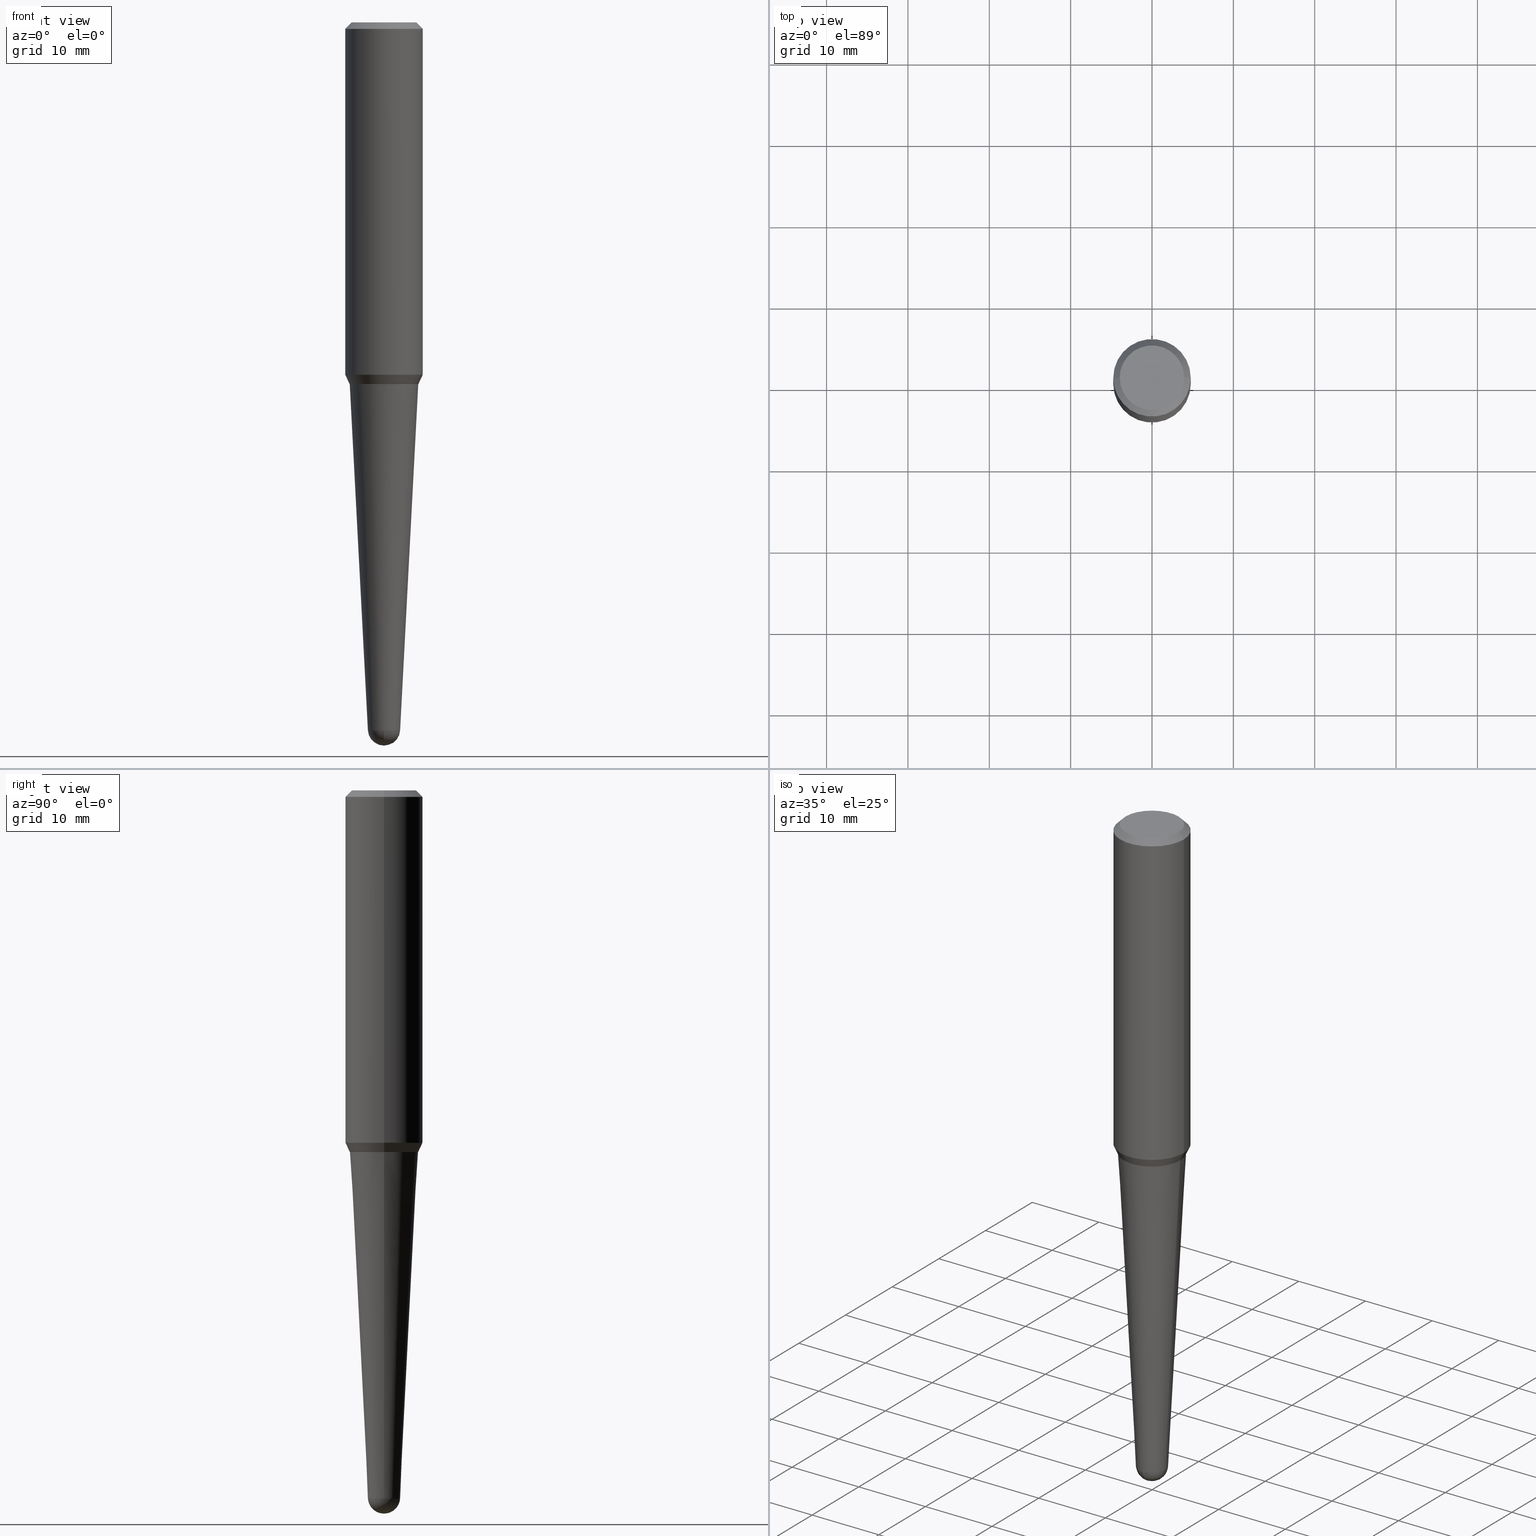
[diagram: canonical four-view strip — front | top / right | iso, engineering-drawing reading convention]
A machine part, canonical four-view strip (front | top / right | iso — engineering-drawing reading convention). The complete STEP part file that produces these views, byte-faithful:
ISO-10303-21;
HEADER;
FILE_DESCRIPTION (( 'STEP AP203' ),
    '1' );
FILE_NAME ('32455.STEP',
    '2024-03-04T15:24:54',
    ( '' ),
    ( '' ),
    'SwSTEP 2.0',
    'SolidWorks 2023',
    '' );
FILE_SCHEMA (( 'CONFIG_CONTROL_DESIGN' ));
ENDSEC;

DATA;
#1 = EDGE_LOOP ( 'NONE', ( #457, #412, #369, #55 ) ) ;
#2 = ADVANCED_FACE ( 'NONE', ( #353 ), #298, .T. ) ;
#3 = DIRECTION ( 'NONE',  ( 6.982962677686265922E-15, 1.000000000000000000, 0.000000000000000000 ) ) ;
#4 = SPHERICAL_SURFACE ( 'NONE', #436, 0.07809999999999991949 ) ;
#5 = AXIS2_PLACEMENT_3D ( 'NONE', #210, #291, #362 ) ;
#6 = DIRECTION ( 'NONE',  ( -2.445468806185136877E-29, 3.491481338843145188E-15, 1.000000000000000000 ) ) ;
#7 = CC_DESIGN_PERSON_AND_ORGANIZATION_ASSIGNMENT ( #352, #30, ( #221 ) ) ;
#8 = CIRCLE ( 'NONE', #377, 0.07799296666433258585 ) ;
#9 = ADVANCED_FACE ( 'NONE', ( #314 ), #246, .T. ) ;
#10 = AXIS2_PLACEMENT_3D ( 'NONE', #118, #262, #418 ) ;
#11 = LINE ( 'NONE', #220, #287 ) ;
#12 = EDGE_CURVE ( 'NONE', #17, #121, #8, .T. ) ;
#13 = ORIENTED_EDGE ( 'NONE', *, *, #74, .T. ) ;
#14 = DIRECTION ( 'NONE',  ( 2.445468806185136597E-29, -3.491481338843145583E-15, -1.000000000000000000 ) ) ;
#15 = AXIS2_PLACEMENT_3D ( 'NONE', #102, #178, #401 ) ;
#16 = CARTESIAN_POINT ( 'NONE',  ( -0.1663277464057546506, -4.925613396161822668E-15, -1.749999999999999556 ) ) ;
#17 = VERTEX_POINT ( 'NONE', #125 ) ;
#18 = DIRECTION ( 'NONE',  ( -2.445468806185136597E-29, 3.491481338843145583E-15, 1.000000000000000000 ) ) ;
#19 = CARTESIAN_POINT ( 'NONE',  ( 7.642090019328561499E-31, -1.091087918388484350E-16, -0.03125000000000003469 ) ) ;
#20 = ORIENTED_EDGE ( 'NONE', *, *, #245, .F. ) ;
#21 = CIRCLE ( 'NONE', #279, 0.07799296666433258585 ) ;
#22 = CARTESIAN_POINT ( 'NONE',  ( 4.169935664663897396E-29, -5.953562981677331975E-15, -1.705168209104609645 ) ) ;
#23 = VECTOR ( 'NONE', #283, 39.37007874015748854 ) ;
#24 = ORIENTED_EDGE ( 'NONE', *, *, #266, .T. ) ;
#25 = CARTESIAN_POINT ( 'NONE',  ( 4.279570410823988484E-29, -6.110092342975504671E-15, -1.750000000000000000 ) ) ;
#26 = APPLICATION_PROTOCOL_DEFINITION ( 'international standard', 'config_control_design', 1994, #403 ) ;
#27 = ORIENTED_EDGE ( 'NONE', *, *, #187, .F. ) ;
#28 = EDGE_CURVE ( 'NONE', #454, #264, #402, .T. ) ;
#29 = DIRECTION ( 'NONE',  ( 1.000000000000000000, -6.982962677686269866E-15, 0.000000000000000000 ) ) ;
#30 = PERSON_AND_ORGANIZATION_ROLE ( 'creator' ) ;
#31 = AXIS2_PLACEMENT_3D ( 'NONE', #351, #393, #61 ) ;
#32 = ORIENTED_EDGE ( 'NONE', *, *, #223, .F. ) ;
#33 = ADVANCED_FACE ( 'NONE', ( #347 ), #49, .T. ) ;
#34 = FACE_OUTER_BOUND ( 'NONE', #167, .T. ) ;
#35 = PLANE ( 'NONE',  #189 ) ;
#36 = ORIENTED_EDGE ( 'NONE', *, *, #181, .F. ) ;
#37 = DIRECTION ( 'NONE',  ( 1.000000000000000000, -6.982962677686269866E-15, 0.000000000000000000 ) ) ;
#38 = CIRCLE ( 'NONE', #207, 0.1562500000000005829 ) ;
#39 = PERSON_AND_ORGANIZATION_ROLE ( 'design_supplier' ) ;
#40 = DIRECTION ( 'NONE',  ( 6.982962677686265922E-15, 1.000000000000000000, 0.000000000000000000 ) ) ;
#41 = EDGE_LOOP ( 'NONE', ( #194, #226, #261, #196, #164 ) ) ;
#42 = AXIS2_PLACEMENT_3D ( 'NONE', #104, #141, #397 ) ;
#43 = VERTEX_POINT ( 'NONE', #321 ) ;
#44 = CIRCLE ( 'NONE', #87, 0.1875000000000002220 ) ;
#45 = APPROVAL ( #98, 'UNSPECIFIED' ) ;
#46 = CYLINDRICAL_SURFACE ( 'NONE', #281, 0.1875000000000001110 ) ;
#47 = CARTESIAN_POINT ( 'NONE',  ( 4.279570410823988484E-29, -6.110092342975503093E-15, -1.749999999999999556 ) ) ;
#48 = EDGE_CURVE ( 'NONE', #296, #426, #443, .T. ) ;
#49 = CONICAL_SURFACE ( 'NONE', #169, 0.1663277464057546506, 0.7853981633975165577 ) ;
#50 =( GEOMETRIC_REPRESENTATION_CONTEXT ( 3 ) GLOBAL_UNCERTAINTY_ASSIGNED_CONTEXT ( ( #106 ) ) GLOBAL_UNIT_ASSIGNED_CONTEXT ( ( #302, #341, #272 ) ) REPRESENTATION_CONTEXT ( 'NONE', 'WORKASPACE' ) );
#51 = DIRECTION ( 'NONE',  ( 0.05233595624294386239, 3.121236355867708811E-15, 0.9986295347545738332 ) ) ;
#52 = CARTESIAN_POINT ( 'NONE',  ( 0.1663277464057546506, -7.271552788390554826E-15, -1.749999999999999556 ) ) ;
#53 = EDGE_LOOP ( 'NONE', ( #70, #333, #168, #113 ) ) ;
#54 = FACE_OUTER_BOUND ( 'NONE', #416, .T. ) ;
#55 = ORIENTED_EDGE ( 'NONE', *, *, #74, .F. ) ;
#56 = LOCAL_TIME ( 10, 24, 54.00000000000000000, #360 ) ;
#57 = MECHANICAL_CONTEXT ( 'NONE', #250, 'mechanical' ) ;
#58 = DIRECTION ( 'NONE',  ( 1.000000000000000000, -6.982962677686266711E-15, 0.000000000000000000 ) ) ;
#59 = ADVANCED_FACE ( 'NONE', ( #34 ), #4, .T. ) ;
#60 = ORIENTED_EDGE ( 'NONE', *, *, #48, .F. ) ;
#61 = DIRECTION ( 'NONE',  ( 1.000000000000000000, -6.982962677686266711E-15, 0.000000000000000000 ) ) ;
#62 = APPROVAL_ROLE ( '' ) ;
#63 = VERTEX_POINT ( 'NONE', #114 ) ;
#64 = AXIS2_PLACEMENT_3D ( 'NONE', #373, #213, #66 ) ;
#65 = CIRCLE ( 'NONE', #358, 0.1658277464057546224 ) ;
#66 = DIRECTION ( 'NONE',  ( 1.000000000000000000, -6.982962677686269866E-15, 0.000000000000000000 ) ) ;
#67 = CARTESIAN_POINT ( 'NONE',  ( 8.659436449305203062E-29, -1.153036080066178855E-14, -3.421899999999999942 ) ) ;
#68 = FACE_OUTER_BOUND ( 'NONE', #41, .T. ) ;
#69 = DIMENSIONAL_EXPONENTS ( 1.000000000000000000, 0.000000000000000000, 0.000000000000000000, 0.000000000000000000, 0.000000000000000000, 0.000000000000000000, 0.000000000000000000 ) ;
#70 = ORIENTED_EDGE ( 'NONE', *, *, #241, .F. ) ;
#71 = FACE_OUTER_BOUND ( 'NONE', #462, .T. ) ;
#72 = VECTOR ( 'NONE', #243, 39.37007874015748854 ) ;
#73 = ORIENTED_EDGE ( 'NONE', *, *, #28, .T. ) ;
#74 = EDGE_CURVE ( 'NONE', #63, #264, #395, .T. ) ;
#75 = APPROVAL_ROLE ( '' ) ;
#76 = VECTOR ( 'NONE', #146, 39.37007874015748143 ) ;
#77 = ORIENTED_EDGE ( 'NONE', *, *, #379, .T. ) ;
#78 = PERSON_AND_ORGANIZATION ( #84, #294 ) ;
#79 = DIRECTION ( 'NONE',  ( -7.105427357600999492E-15, -1.000000000000000000, 0.000000000000000000 ) ) ;
#80 = DATE_TIME_ROLE ( 'classification_date' ) ;
#81 = DIRECTION ( 'NONE',  ( -2.445468806185136597E-29, 3.491481338843145583E-15, 1.000000000000000000 ) ) ;
#82 = EDGE_CURVE ( 'NONE', #311, #17, #94, .T. ) ;
#83 = ORIENTED_EDGE ( 'NONE', *, *, #293, .T. ) ;
#84 = PERSON ( 'UNSPECIFIED', 'UNSPECIFIED', 'UNSPECIFIED', ('UNSPECIFIED'), ('UNSPECIFIED'), ('UNSPECIFIED') ) ;
#85 = LINE ( 'NONE', #227, #72 ) ;
#86 = PERSON_AND_ORGANIZATION ( #84, #294 ) ;
#87 = AXIS2_PLACEMENT_3D ( 'NONE', #340, #185, #458 ) ;
#88 = CYLINDRICAL_SURFACE ( 'NONE', #456, 0.1875000000000001110 ) ;
#89 = EDGE_LOOP ( 'NONE', ( #20, #222, #24, #93 ) ) ;
#90 = DIRECTION ( 'NONE',  ( 1.000000000000000000, -6.982962677686266711E-15, 4.852736867747363404E-29 ) ) ;
#91 = CARTESIAN_POINT ( 'NONE',  ( 4.278347676420896243E-29, -6.108346602306083167E-15, -1.749500000000000055 ) ) ;
#92 = DIRECTION ( 'NONE',  ( 0.7071067811865957564, -2.468850131082761932E-15, 0.7071067811864992780 ) ) ;
#93 = ORIENTED_EDGE ( 'NONE', *, *, #449, .F. ) ;
#94 = CIRCLE ( 'NONE', #15, 0.07809999999999991949 ) ;
#95 = CONICAL_SURFACE ( 'NONE', #410, 0.1874999999999999722, 0.7853981633974497223 ) ;
#96 = ORIENTED_EDGE ( 'NONE', *, *, #82, .F. ) ;
#97 = CARTESIAN_POINT ( 'NONE',  ( -0.1658277464057546224, -4.931815337014733979E-15, -1.750000000000000000 ) ) ;
#98 = APPROVAL_STATUS ( 'not_yet_approved' ) ;
#99 = APPROVAL ( #378, 'UNSPECIFIED' ) ;
#100 = VERTEX_POINT ( 'NONE', #285 ) ;
#101 = DATE_AND_TIME ( #137, #325 ) ;
#102 = CARTESIAN_POINT ( 'NONE',  ( 8.659436449305203062E-29, -1.153036080066178855E-14, -3.421899999999999942 ) ) ;
#103 = CC_DESIGN_APPROVAL ( #45, ( #221 ) ) ;
#104 = CARTESIAN_POINT ( 'NONE',  ( 8.378145410457613452E-29, -1.196177120752549174E-14, -3.425987438182573896 ) ) ;
#105 = PERSON_AND_ORGANIZATION ( #84, #294 ) ;
#106 = UNCERTAINTY_MEASURE_WITH_UNIT (LENGTH_MEASURE( 1.000000000000000082E-05 ), #302, 'distance_accuracy_value', 'NONE');
#107 = DIRECTION ( 'NONE',  ( 1.000000000000000000, -6.982962677686269866E-15, 0.000000000000000000 ) ) ;
#108 = FACE_OUTER_BOUND ( 'NONE', #215, .T. ) ;
#109 = EDGE_LOOP ( 'NONE', ( #77, #387 ) ) ;
#110 = CIRCLE ( 'NONE', #42, 0.07799296666433258585 ) ;
#111 = VECTOR ( 'NONE', #163, 39.37007874015748143 ) ;
#112 = EDGE_CURVE ( 'NONE', #382, #454, #208, .T. ) ;
#113 = ORIENTED_EDGE ( 'NONE', *, *, #417, .F. ) ;
#114 = CARTESIAN_POINT ( 'NONE',  ( 0.1875000000000002220, -7.262868483743506194E-15, -1.705168209104609645 ) ) ;
#115 = ORIENTED_EDGE ( 'NONE', *, *, #204, .T. ) ;
#116 = LOCAL_TIME ( 10, 24, 54.00000000000000000, #414 ) ;
#117 = DIRECTION ( 'NONE',  ( -2.445468806185136597E-29, 3.491481338843145583E-15, 1.000000000000000000 ) ) ;
#118 = CARTESIAN_POINT ( 'NONE',  ( 1.794926649214104394E-44, -2.562679550224799417E-30, -7.339805949167432636E-16 ) ) ;
#119 = EDGE_CURVE ( 'NONE', #121, #296, #110, .T. ) ;
#120 = FACE_OUTER_BOUND ( 'NONE', #257, .T. ) ;
#121 = VERTEX_POINT ( 'NONE', #434 ) ;
#122 = VECTOR ( 'NONE', #363, 39.37007874015748854 ) ;
#123 = DIRECTION ( 'NONE',  ( -2.445468806185136597E-29, 3.491481338843145583E-15, 1.000000000000000000 ) ) ;
#124 =( LENGTH_UNIT ( ) NAMED_UNIT ( * ) SI_UNIT ( $, .METRE. ) );
#125 = CARTESIAN_POINT ( 'NONE',  ( 5.446219753391471810E-16, 0.07799296666432059544, -3.425987438182573896 ) ) ;
#126 = ADVANCED_FACE ( 'NONE', ( #71 ), #440, .T. ) ;
#127 = FACE_OUTER_BOUND ( 'NONE', #232, .T. ) ;
#128 = ORIENTED_EDGE ( 'NONE', *, *, #417, .T. ) ;
#129 = APPROVAL_DATE_TIME ( #205, #45 ) ;
#130 = DIRECTION ( 'NONE',  ( -2.445468806185136597E-29, 3.491481338843145583E-15, 1.000000000000000000 ) ) ;
#131 = DIRECTION ( 'NONE',  ( 1.000000000000000000, -6.982962677686266711E-15, 0.000000000000000000 ) ) ;
#132 = CONICAL_SURFACE ( 'NONE', #155, 0.07799296666433258585, 0.05235987755982991071 ) ;
#133 = ADVANCED_FACE ( 'NONE', ( #108 ), #35, .F. ) ;
#134 = DIRECTION ( 'NONE',  ( 0.000000000000000000, 0.000000000000000000, 1.000000000000000000 ) ) ;
#135 = ORIENTED_EDGE ( 'NONE', *, *, #241, .T. ) ;
#136 = CARTESIAN_POINT ( 'NONE',  ( 4.279570410823988484E-29, -6.110092342975504671E-15, -1.750000000000000000 ) ) ;
#137 = CALENDAR_DATE ( 2024, 4, 3 ) ;
#138 = CARTESIAN_POINT ( 'NONE',  ( 0.1875000000000001110, -1.309305502066173628E-15, 5.931196827434387479E-16 ) ) ;
#139 = CARTESIAN_POINT ( 'NONE',  ( -0.1874999999999999722, -1.699068257207900914E-15, -0.03125000000000003469 ) ) ;
#140 = ADVANCED_FACE ( 'NONE', ( #68 ), #149, .T. ) ;
#141 = DIRECTION ( 'NONE',  ( -2.445468806185136597E-29, 3.491481338843145583E-15, 1.000000000000000000 ) ) ;
#142 = VECTOR ( 'NONE', #6, 39.37007874015748143 ) ;
#143 = CIRCLE ( 'NONE', #317, 0.1874999999999999722 ) ;
#144 = CARTESIAN_POINT ( 'NONE',  ( 8.378145410457613452E-29, -1.196177120752549174E-14, -3.425987438182573896 ) ) ;
#145 = EDGE_CURVE ( 'NONE', #426, #17, #21, .T. ) ;
#146 = DIRECTION ( 'NONE',  ( 0.4226182617406874509, 2.132291770428443236E-16, 0.9063077870366555988 ) ) ;
#147 = EDGE_CURVE ( 'NONE', #100, #382, #11, .T. ) ;
#148 = DATE_AND_TIME ( #290, #56 ) ;
#149 = CONICAL_SURFACE ( 'NONE', #218, 0.07799296666433258585, 0.05235987755982991071 ) ;
#150 = AXIS2_PLACEMENT_3D ( 'NONE', #22, #18, #415 ) ;
#151 = VERTEX_POINT ( 'NONE', #326 ) ;
#152 = CARTESIAN_POINT ( 'NONE',  ( 8.659436449305203062E-29, -1.153036080066178855E-14, -3.421899999999999942 ) ) ;
#153 = ORIENTED_EDGE ( 'NONE', *, *, #245, .T. ) ;
#154 = CARTESIAN_POINT ( 'NONE',  ( 0.1562500000000005829, -1.233702489286409496E-15, -7.339805949167350791E-16 ) ) ;
#155 = AXIS2_PLACEMENT_3D ( 'NONE', #328, #364, #37 ) ;
#156 = DIRECTION ( 'NONE',  ( 1.000000000000000000, -6.982962677686265922E-15, 4.876176775795935793E-29 ) ) ;
#157 = EDGE_LOOP ( 'NONE', ( #83, #135, #394, #212 ) ) ;
#158 = CARTESIAN_POINT ( 'NONE',  ( 0.07799296666433258585, -1.250639318286455540E-14, -3.425987438182573896 ) ) ;
#159 = DATE_AND_TIME ( #339, #116 ) ;
#160 = DIRECTION ( 'NONE',  ( -2.445468806185136597E-29, 3.491481338843145583E-15, 1.000000000000000000 ) ) ;
#161 = CARTESIAN_POINT ( 'NONE',  ( 8.378145410457613452E-29, -1.196177120752549174E-14, -3.425987438182573896 ) ) ;
#162 = AXIS2_PLACEMENT_3D ( 'NONE', #47, #123, #186 ) ;
#163 = DIRECTION ( 'NONE',  ( -0.7071067811865957564, 7.493145998870527710E-15, 0.7071067811864992780 ) ) ;
#164 = ORIENTED_EDGE ( 'NONE', *, *, #329, .F. ) ;
#165 = DIRECTION ( 'NONE',  ( 1.000000000000000000, -6.982962677686265922E-15, 0.000000000000000000 ) ) ;
#166 = PERSON_AND_ORGANIZATION ( #84, #294 ) ;
#167 = EDGE_LOOP ( 'NONE', ( #27, #390, #372, #60 ) ) ;
#168 = ORIENTED_EDGE ( 'NONE', *, *, #332, .T. ) ;
#169 = AXIS2_PLACEMENT_3D ( 'NONE', #435, #411, #244 ) ;
#170 = DIRECTION ( 'NONE',  ( -2.445468806185136597E-29, 3.491481338843145583E-15, 1.000000000000000000 ) ) ;
#171 = CARTESIAN_POINT ( 'NONE',  ( 0.000000000000000000, 0.000000000000000000, 0.000000000000000000 ) ) ;
#172 = DIRECTION ( 'NONE',  ( 2.438088387897960049E-29, -3.491481338843145188E-15, -1.000000000000000000 ) ) ;
#173 = PERSON_AND_ORGANIZATION ( #84, #294 ) ;
#174 = CC_DESIGN_PERSON_AND_ORGANIZATION_ASSIGNMENT ( #400, #366, ( #256 ) ) ;
#175 = FACE_OUTER_BOUND ( 'NONE', #431, .T. ) ;
#176 = AXIS2_PLACEMENT_3D ( 'NONE', #344, #130, #278 ) ;
#177 = LOCAL_TIME ( 10, 24, 54.00000000000000000, #217 ) ;
#178 = DIRECTION ( 'NONE',  ( 1.000000000000000000, -6.982962677686265922E-15, 4.883557194083112340E-29 ) ) ;
#179 = DIRECTION ( 'NONE',  ( -0.4226182617406874509, 6.167240084480771347E-15, 0.9063077870366555988 ) ) ;
#180 = ORIENTED_EDGE ( 'NONE', *, *, #449, .T. ) ;
#181 = EDGE_CURVE ( 'NONE', #200, #63, #286, .T. ) ;
#182 = LOCAL_TIME ( 10, 24, 54.00000000000000000, #349 ) ;
#183 = EDGE_LOOP ( 'NONE', ( #115, #335, #32, #36 ) ) ;
#184 = ORIENTED_EDGE ( 'NONE', *, *, #119, .F. ) ;
#185 = DIRECTION ( 'NONE',  ( -2.445468806185136597E-29, 3.491481338843145583E-15, 1.000000000000000000 ) ) ;
#186 = DIRECTION ( 'NONE',  ( 1.000000000000000000, -6.982962677686267499E-15, 0.000000000000000000 ) ) ;
#187 = EDGE_CURVE ( 'NONE', #311, #296, #346, .T. ) ;
#188 = LENGTH_MEASURE_WITH_UNIT ( LENGTH_MEASURE( 0.02539999999999999897 ), #124 );
#189 = AXIS2_PLACEMENT_3D ( 'NONE', #439, #172, #322 ) ;
#190 = AXIS2_PLACEMENT_3D ( 'NONE', #452, #117, #191 ) ;
#191 = DIRECTION ( 'NONE',  ( 1.000000000000000000, -6.982962677686267499E-15, 0.000000000000000000 ) ) ;
#192 = SECURITY_CLASSIFICATION_LEVEL ( 'unclassified' ) ;
#193 = CARTESIAN_POINT ( 'NONE',  ( 0.1874999999999999722, -1.418414293905023123E-15, -0.03125000000000003469 ) ) ;
#194 = ORIENTED_EDGE ( 'NONE', *, *, #433, .F. ) ;
#195 = PLANE ( 'NONE',  #198 ) ;
#196 = ORIENTED_EDGE ( 'NONE', *, *, #216, .T. ) ;
#197 = CIRCLE ( 'NONE', #5, 0.1668277464057543458 ) ;
#198 = AXIS2_PLACEMENT_3D ( 'NONE', #448, #259, #156 ) ;
#199 = PERSON_AND_ORGANIZATION_ROLE ( 'design_owner' ) ;
#200 = VERTEX_POINT ( 'NONE', #289 ) ;
#201 = DIRECTION ( 'NONE',  ( -1.000000000000000000, 6.982962677686265922E-15, -4.876176775795935793E-29 ) ) ;
#202 = DIRECTION ( 'NONE',  ( -2.445468806185136597E-29, 3.491481338843145583E-15, 1.000000000000000000 ) ) ;
#203 = CARTESIAN_POINT ( 'NONE',  ( 0.07799296666433258585, -9.887227244958132819E-15, -3.425987438182573896 ) ) ;
#204 = EDGE_CURVE ( 'NONE', #200, #100, #197, .T. ) ;
#205 = DATE_AND_TIME ( #461, #182 ) ;
#206 = ORIENTED_EDGE ( 'NONE', *, *, #306, .F. ) ;
#207 = AXIS2_PLACEMENT_3D ( 'NONE', #337, #81, #225 ) ;
#208 = LINE ( 'NONE', #251, #142 ) ;
#209 = ADVANCED_FACE ( 'NONE', ( #175 ), #132, .T. ) ;
#210 = CARTESIAN_POINT ( 'NONE',  ( 4.278347676420896243E-29, -6.108346602306083167E-15, -1.749500000000000055 ) ) ;
#211 = DIRECTION ( 'NONE',  ( 1.000000000000000000, -6.982962677686269866E-15, 0.000000000000000000 ) ) ;
#212 = ORIENTED_EDGE ( 'NONE', *, *, #332, .F. ) ;
#213 = DIRECTION ( 'NONE',  ( -2.445468806185136597E-29, 3.491481338843145583E-15, 1.000000000000000000 ) ) ;
#214 = EDGE_CURVE ( 'NONE', #382, #63, #44, .T. ) ;
#215 = EDGE_LOOP ( 'NONE', ( #459, #153 ) ) ;
#216 = EDGE_CURVE ( 'NONE', #426, #43, #310, .T. ) ;
#217 = COORDINATED_UNIVERSAL_TIME_OFFSET ( 5, 0, .BEHIND. ) ;
#218 = AXIS2_PLACEMENT_3D ( 'NONE', #144, #445, #107 ) ;
#219 = AXIS2_PLACEMENT_3D ( 'NONE', #136, #388, #201 ) ;
#220 = CARTESIAN_POINT ( 'NONE',  ( -0.1668277464057543458, -4.922964168987713834E-15, -1.749500000000000055 ) ) ;
#221 = PRODUCT_DEFINITION ( 'UNKNOWN', '', #256, #284 ) ;
#222 = ORIENTED_EDGE ( 'NONE', *, *, #367, .T. ) ;
#223 = EDGE_CURVE ( 'NONE', #63, #382, #247, .T. ) ;
#224 = DATE_AND_TIME ( #334, #177 ) ;
#225 = DIRECTION ( 'NONE',  ( 1.000000000000000000, -6.982962677686267499E-15, 4.891558762689326218E-29 ) ) ;
#226 = ORIENTED_EDGE ( 'NONE', *, *, #119, .T. ) ;
#227 = CARTESIAN_POINT ( 'NONE',  ( 0.1874999999999999722, -1.395452166421010480E-15, -0.03125000000000003469 ) ) ;
#228 = AXIS2_PLACEMENT_3D ( 'NONE', #152, #361, #40 ) ;
#229 = ORIENTED_EDGE ( 'NONE', *, *, #214, .F. ) ;
#230 = CC_DESIGN_PERSON_AND_ORGANIZATION_ASSIGNMENT ( #173, #199, ( #277 ) ) ;
#231 = LINE ( 'NONE', #304, #111 ) ;
#232 = EDGE_LOOP ( 'NONE', ( #350, #315, #13, #305 ) ) ;
#233 = CARTESIAN_POINT ( 'NONE',  ( 7.642090019328561499E-31, -1.091087918388484350E-16, -0.03125000000000003469 ) ) ;
#234 = DIRECTION ( 'NONE',  ( -2.445468806185136597E-29, 3.491481338843145583E-15, 1.000000000000000000 ) ) ;
#235 = DIRECTION ( 'NONE',  ( -2.445468806185136597E-29, 3.491481338843145583E-15, 1.000000000000000000 ) ) ;
#236 = DIRECTION ( 'NONE',  ( -2.445468806185136597E-29, 3.491481338843145583E-15, 1.000000000000000000 ) ) ;
#237 = CIRCLE ( 'NONE', #10, 0.1562500000000005829 ) ;
#238 = CC_DESIGN_SECURITY_CLASSIFICATION ( #437, ( #256 ) ) ;
#239 = DIRECTION ( 'NONE',  ( 1.000000000000000000, 0.000000000000000000, 0.000000000000000000 ) ) ;
#240 = VERTEX_POINT ( 'NONE', #16 ) ;
#241 = EDGE_CURVE ( 'NONE', #240, #100, #231, .T. ) ;
#242 = ORIENTED_EDGE ( 'NONE', *, *, #357, .F. ) ;
#243 = DIRECTION ( 'NONE',  ( 0.7071067811865484609, -7.319954787623257623E-15, -0.7071067811865464625 ) ) ;
#244 = DIRECTION ( 'NONE',  ( 1.000000000000000000, -6.982962677686267499E-15, 0.000000000000000000 ) ) ;
#245 = EDGE_CURVE ( 'NONE', #303, #151, #38, .T. ) ;
#246 = CONICAL_SURFACE ( 'NONE', #176, 0.1663277464057546506, 0.7853981633975165577 ) ;
#247 = CIRCLE ( 'NONE', #150, 0.1875000000000002220 ) ;
#248 = DIRECTION ( 'NONE',  ( -2.445468806185136597E-29, 3.491481338843145583E-15, 1.000000000000000000 ) ) ;
#249 = DIRECTION ( 'NONE',  ( -1.000000000000000000, 6.982962677686265922E-15, -4.883557194083112901E-29 ) ) ;
#250 = APPLICATION_CONTEXT ( 'configuration controlled 3d designs of mechanical parts and assemblies' ) ;
#251 = CARTESIAN_POINT ( 'NONE',  ( -0.1875000000000001110, 1.332267629550190807E-15, 5.931196827434205055E-16 ) ) ;
#252 = DIRECTION ( 'NONE',  ( -1.000000000000000000, 7.105427357601001070E-15, -4.926315508542082329E-29 ) ) ;
#253 = CIRCLE ( 'NONE', #162, 0.1663277464057546506 ) ;
#254 = ADVANCED_FACE ( 'NONE', ( #127 ), #46, .T. ) ;
#255 = CARTESIAN_POINT ( 'NONE',  ( 0.1668277464057543458, -7.273298529059973963E-15, -1.749500000000000055 ) ) ;
#256 = PRODUCT_DEFINITION_FORMATION_WITH_SPECIFIED_SOURCE ( 'ANY', '', #277, .NOT_KNOWN. ) ;
#257 = EDGE_LOOP ( 'NONE', ( #309, #242, #180, #73 ) ) ;
#258 = PERSON_AND_ORGANIZATION_ROLE ( 'classification_officer' ) ;
#259 = DIRECTION ( 'NONE',  ( -2.438088387897960049E-29, 3.491481338843145188E-15, 1.000000000000000000 ) ) ;
#260 = MANIFOLD_SOLID_BREP ( 'Body-Move/Copy2[1]', #330 ) ;
#261 = ORIENTED_EDGE ( 'NONE', *, *, #48, .T. ) ;
#262 = DIRECTION ( 'NONE',  ( -2.445468806185136597E-29, 3.491481338843145583E-15, 1.000000000000000000 ) ) ;
#263 = CC_DESIGN_PERSON_AND_ORGANIZATION_ASSIGNMENT ( #336, #258, ( #437 ) ) ;
#264 = VERTEX_POINT ( 'NONE', #193 ) ;
#265 = LINE ( 'NONE', #52, #421 ) ;
#266 = EDGE_CURVE ( 'NONE', #264, #454, #143, .T. ) ;
#267 = AXIS2_PLACEMENT_3D ( 'NONE', #424, #234, #384 ) ;
#268 = AXIS2_PLACEMENT_3D ( 'NONE', #25, #248, #165 ) ;
#269 = VERTEX_POINT ( 'NONE', #375 ) ;
#270 = CONICAL_SURFACE ( 'NONE', #380, 0.1874999999999999722, 0.7853981633974497223 ) ;
#271 = DIRECTION ( 'NONE',  ( 1.000000000000000000, -6.982962677686265922E-15, 0.000000000000000000 ) ) ;
#272 =( NAMED_UNIT ( * ) SI_UNIT ( $, .STERADIAN. ) SOLID_ANGLE_UNIT ( ) );
#273 = ORIENTED_EDGE ( 'NONE', *, *, #12, .T. ) ;
#274 = FACE_OUTER_BOUND ( 'NONE', #1, .T. ) ;
#275 = APPLICATION_PROTOCOL_DEFINITION ( 'international standard', 'config_control_design', 1994, #250 ) ;
#276 = ORIENTED_EDGE ( 'NONE', *, *, #216, .F. ) ;
#277 = PRODUCT ( '32455', '32455', '', ( #57 ) ) ;
#278 = DIRECTION ( 'NONE',  ( 1.000000000000000000, -6.982962677686267499E-15, 0.000000000000000000 ) ) ;
#279 = AXIS2_PLACEMENT_3D ( 'NONE', #323, #399, #211 ) ;
#280 = ADVANCED_FACE ( 'NONE', ( #274 ), #88, .T. ) ;
#281 = AXIS2_PLACEMENT_3D ( 'NONE', #345, #235, #90 ) ;
#282 = ORIENTED_EDGE ( 'NONE', *, *, #181, .T. ) ;
#283 = DIRECTION ( 'NONE',  ( -0.05233595624294386239, 3.858565720288030357E-15, 0.9986295347545738332 ) ) ;
#284 = DESIGN_CONTEXT ( 'detailed design', #403, 'design' ) ;
#285 = CARTESIAN_POINT ( 'NONE',  ( -0.1668277464057543458, -4.922964168987714623E-15, -1.749500000000000055 ) ) ;
#286 = LINE ( 'NONE', #255, #76 ) ;
#287 = VECTOR ( 'NONE', #179, 39.37007874015748143 ) ;
#288 = CC_DESIGN_APPROVAL ( #99, ( #256 ) ) ;
#289 = CARTESIAN_POINT ( 'NONE',  ( 0.1668277464057543458, -7.273298529059973963E-15, -1.749500000000000055 ) ) ;
#290 = CALENDAR_DATE ( 2024, 4, 3 ) ;
#291 = DIRECTION ( 'NONE',  ( -2.445468806185136597E-29, 3.491481338843145583E-15, 1.000000000000000000 ) ) ;
#292 = APPROVAL_DATE_TIME ( #224, #319 ) ;
#293 = EDGE_CURVE ( 'NONE', #269, #240, #299, .T. ) ;
#294 = ORGANIZATION ( 'UNSPECIFIED', 'UNSPECIFIED', '' ) ;
#295 = DIRECTION ( 'NONE',  ( -2.445468806185136877E-29, 3.491481338843145188E-15, 1.000000000000000000 ) ) ;
#296 = VERTEX_POINT ( 'NONE', #450 ) ;
#297 = DIRECTION ( 'NONE',  ( 2.445468806185136597E-29, -3.491481338843145583E-15, -1.000000000000000000 ) ) ;
#298 = CONICAL_SURFACE ( 'NONE', #385, 0.1668277464057543458, 0.4363323129985691717 ) ;
#299 = CIRCLE ( 'NONE', #190, 0.1663277464057546506 ) ;
#300 = ADVANCED_FACE ( 'NONE', ( #376 ), #270, .T. ) ;
#301 = DIRECTION ( 'NONE',  ( 1.000000000000000000, -6.982962677686266711E-15, 0.000000000000000000 ) ) ;
#302 =( CONVERSION_BASED_UNIT ( 'INCH', #188 ) LENGTH_UNIT ( ) NAMED_UNIT ( #69 ) );
#303 = VERTEX_POINT ( 'NONE', #154 ) ;
#304 = CARTESIAN_POINT ( 'NONE',  ( -0.1663277464057546506, -4.928262623335933081E-15, -1.749999999999999556 ) ) ;
#305 = ORIENTED_EDGE ( 'NONE', *, *, #28, .F. ) ;
#306 = EDGE_CURVE ( 'NONE', #240, #269, #253, .T. ) ;
#307 = CARTESIAN_POINT ( 'NONE',  ( 8.853766987427507370E-29, -1.179826324747476745E-14, -3.500000000000000000 ) ) ;
#308 = CIRCLE ( 'NONE', #31, 0.1668277464057543458 ) ;
#309 = ORIENTED_EDGE ( 'NONE', *, *, #367, .F. ) ;
#310 = LINE ( 'NONE', #158, #405 ) ;
#311 = VERTEX_POINT ( 'NONE', #307 ) ;
#312 = ADVANCED_FACE ( 'NONE', ( #120 ), #95, .T. ) ;
#313 = CARTESIAN_POINT ( 'NONE',  ( -0.1875000000000002220, -4.621295352127141759E-15, -1.705168209104609645 ) ) ;
#314 = FACE_OUTER_BOUND ( 'NONE', #53, .T. ) ;
#315 = ORIENTED_EDGE ( 'NONE', *, *, #214, .T. ) ;
#316 = CARTESIAN_POINT ( 'NONE',  ( -0.1874999999999999722, 1.200196710227326499E-15, -0.03125000000000003469 ) ) ;
#317 = AXIS2_PLACEMENT_3D ( 'NONE', #19, #455, #301 ) ;
#318 = CARTESIAN_POINT ( 'NONE',  ( -0.07799296666433258585, -1.140759784848827963E-14, -3.425987438182573896 ) ) ;
#319 = APPROVAL ( #451, 'UNSPECIFIED' ) ;
#320 = COORDINATED_UNIVERSAL_TIME_OFFSET ( 5, 0, .BEHIND. ) ;
#321 = CARTESIAN_POINT ( 'NONE',  ( 0.1658277464057546224, -7.268061307051711819E-15, -1.750000000000000000 ) ) ;
#322 = DIRECTION ( 'NONE',  ( -1.000000000000000000, 6.982962677686265922E-15, -4.876176775795935793E-29 ) ) ;
#323 = CARTESIAN_POINT ( 'NONE',  ( 8.378145410457613452E-29, -1.196177120752549174E-14, -3.425987438182573896 ) ) ;
#324 = ORIENTED_EDGE ( 'NONE', *, *, #293, .F. ) ;
#325 = LOCAL_TIME ( 10, 24, 54.00000000000000000, #320 ) ;
#326 = CARTESIAN_POINT ( 'NONE',  ( -0.1562500000000005829, 1.145642314307903527E-15, -7.339805949167510536E-16 ) ) ;
#327 = ORIENTED_EDGE ( 'NONE', *, *, #12, .F. ) ;
#328 = CARTESIAN_POINT ( 'NONE',  ( 8.378145410457613452E-29, -1.196177120752549174E-14, -3.425987438182573896 ) ) ;
#329 = EDGE_CURVE ( 'NONE', #408, #43, #65, .T. ) ;
#330 = CLOSED_SHELL ( 'NONE', ( #209, #126, #59, #140, #398 ) ) ;
#331 = CIRCLE ( 'NONE', #268, 0.1658277464057546224 ) ;
#332 = EDGE_CURVE ( 'NONE', #269, #200, #265, .T. ) ;
#333 = ORIENTED_EDGE ( 'NONE', *, *, #306, .T. ) ;
#334 = CALENDAR_DATE ( 2024, 4, 3 ) ;
#335 = ORIENTED_EDGE ( 'NONE', *, *, #147, .T. ) ;
#336 = PERSON_AND_ORGANIZATION ( #84, #294 ) ;
#337 = CARTESIAN_POINT ( 'NONE',  ( 1.794926649214104394E-44, -2.562679550224799417E-30, -7.339805949167432636E-16 ) ) ;
#338 = CARTESIAN_POINT ( 'NONE',  ( 7.642090019328561499E-31, -1.091087918388484350E-16, -0.03125000000000003469 ) ) ;
#339 = CALENDAR_DATE ( 2024, 4, 3 ) ;
#340 = CARTESIAN_POINT ( 'NONE',  ( 4.169935664663897396E-29, -5.953562981677331975E-15, -1.705168209104609645 ) ) ;
#341 =( NAMED_UNIT ( * ) PLANE_ANGLE_UNIT ( ) SI_UNIT ( $, .RADIAN. ) );
#342 = ADVANCED_FACE ( 'NONE', ( #54 ), #195, .F. ) ;
#343 = DIRECTION ( 'NONE',  ( -1.000000000000000000, 6.982962677686266711E-15, 0.000000000000000000 ) ) ;
#344 = CARTESIAN_POINT ( 'NONE',  ( 4.279570410823988484E-29, -6.110092342975503093E-15, -1.749999999999999556 ) ) ;
#345 = CARTESIAN_POINT ( 'NONE',  ( -1.450455682483482035E-44, 2.070866303999251778E-30, 5.931196827434296760E-16 ) ) ;
#346 = CIRCLE ( 'NONE', #409, 0.07809999999999991949 ) ;
#347 = FACE_OUTER_BOUND ( 'NONE', #157, .T. ) ;
#348 = FACE_OUTER_BOUND ( 'NONE', #422, .T. ) ;
#349 = COORDINATED_UNIVERSAL_TIME_OFFSET ( 5, 0, .BEHIND. ) ;
#350 = ORIENTED_EDGE ( 'NONE', *, *, #112, .F. ) ;
#351 = CARTESIAN_POINT ( 'NONE',  ( 4.278347676420896243E-29, -6.108346602306083167E-15, -1.749500000000000055 ) ) ;
#352 = PERSON_AND_ORGANIZATION ( #84, #294 ) ;
#353 = FACE_OUTER_BOUND ( 'NONE', #183, .T. ) ;
#354 = LINE ( 'NONE', #318, #23 ) ;
#355 = APPROVAL_ROLE ( '' ) ;
#356 = ORIENTED_EDGE ( 'NONE', *, *, #147, .F. ) ;
#357 = EDGE_CURVE ( 'NONE', #151, #303, #237, .T. ) ;
#358 = AXIS2_PLACEMENT_3D ( 'NONE', #381, #420, #271 ) ;
#359 = CARTESIAN_POINT ( 'NONE',  ( 4.278347676420896243E-29, -6.108346602306083167E-15, -1.749500000000000055 ) ) ;
#360 = COORDINATED_UNIVERSAL_TIME_OFFSET ( 5, 0, .BEHIND. ) ;
#361 = DIRECTION ( 'NONE',  ( -1.000000000000000000, 6.982962677686265922E-15, -4.883557194083112901E-29 ) ) ;
#362 = DIRECTION ( 'NONE',  ( 1.000000000000000000, -6.982962677686266711E-15, 0.000000000000000000 ) ) ;
#363 = DIRECTION ( 'NONE',  ( -0.7071067811865484609, 2.468850131082267316E-15, -0.7071067811865464625 ) ) ;
#364 = DIRECTION ( 'NONE',  ( -2.445468806185136597E-29, 3.491481338843145583E-15, 1.000000000000000000 ) ) ;
#365 = AXIS2_PLACEMENT_3D ( 'NONE', #359, #170, #131 ) ;
#366 = PERSON_AND_ORGANIZATION_ROLE ( 'creator' ) ;
#367 = EDGE_CURVE ( 'NONE', #303, #264, #85, .T. ) ;
#368 = CARTESIAN_POINT ( 'NONE',  ( 8.659436449305203062E-29, -1.153036080066178855E-14, -3.421899999999999942 ) ) ;
#369 = ORIENTED_EDGE ( 'NONE', *, *, #266, .F. ) ;
#370 = ADVANCED_FACE ( 'NONE', ( #348 ), #430, .T. ) ;
#371 = APPROVAL_PERSON_ORGANIZATION ( #86, #99, #355 ) ;
#372 = ORIENTED_EDGE ( 'NONE', *, *, #145, .F. ) ;
#373 = CARTESIAN_POINT ( 'NONE',  ( 8.378145410457613452E-29, -1.196177120752549174E-14, -3.425987438182573896 ) ) ;
#374 = ORIENTED_EDGE ( 'NONE', *, *, #433, .T. ) ;
#375 = CARTESIAN_POINT ( 'NONE',  ( 0.1663277464057546506, -7.271552788390554826E-15, -1.749999999999999556 ) ) ;
#376 = FACE_OUTER_BOUND ( 'NONE', #89, .T. ) ;
#377 = AXIS2_PLACEMENT_3D ( 'NONE', #161, #202, #29 ) ;
#378 = APPROVAL_STATUS ( 'not_yet_approved' ) ;
#379 = EDGE_CURVE ( 'NONE', #43, #408, #331, .T. ) ;
#380 = AXIS2_PLACEMENT_3D ( 'NONE', #338, #14, #343 ) ;
#381 = CARTESIAN_POINT ( 'NONE',  ( 4.279570410823988484E-29, -6.110092342975504671E-15, -1.750000000000000000 ) ) ;
#382 = VERTEX_POINT ( 'NONE', #313 ) ;
#383 = DIRECTION ( 'NONE',  ( 1.000000000000000000, -6.982962677686266711E-15, 4.852736867747363404E-29 ) ) ;
#384 = DIRECTION ( 'NONE',  ( 1.000000000000000000, -6.982962677686266711E-15, 0.000000000000000000 ) ) ;
#385 = AXIS2_PLACEMENT_3D ( 'NONE', #91, #236, #58 ) ;
#386 = APPROVAL_PERSON_ORGANIZATION ( #78, #319, #75 ) ;
#387 = ORIENTED_EDGE ( 'NONE', *, *, #329, .T. ) ;
#388 = DIRECTION ( 'NONE',  ( 2.438088387897960049E-29, -3.491481338843145188E-15, -1.000000000000000000 ) ) ;
#389 = CC_DESIGN_DATE_AND_TIME_ASSIGNMENT ( #101, #453, ( #221 ) ) ;
#390 = ORIENTED_EDGE ( 'NONE', *, *, #82, .T. ) ;
#391 = PRODUCT_DEFINITION_SHAPE ( 'NONE', 'NONE',  #221 ) ;
#392 = LINE ( 'NONE', #316, #122 ) ;
#393 = DIRECTION ( 'NONE',  ( -2.445468806185136597E-29, 3.491481338843145583E-15, 1.000000000000000000 ) ) ;
#394 = ORIENTED_EDGE ( 'NONE', *, *, #204, .F. ) ;
#395 = LINE ( 'NONE', #138, #446 ) ;
#396 = APPROVAL_PERSON_ORGANIZATION ( #166, #45, #62 ) ;
#397 = DIRECTION ( 'NONE',  ( 1.000000000000000000, -6.982962677686269866E-15, 0.000000000000000000 ) ) ;
#398 = ADVANCED_FACE ( 'NONE', ( #428 ), #460, .F. ) ;
#399 = DIRECTION ( 'NONE',  ( -2.445468806185136597E-29, 3.491481338843145583E-15, 1.000000000000000000 ) ) ;
#400 = PERSON_AND_ORGANIZATION ( #84, #294 ) ;
#401 = DIRECTION ( 'NONE',  ( 6.982962677686265133E-15, 1.000000000000000000, 0.000000000000000000 ) ) ;
#402 = CIRCLE ( 'NONE', #267, 0.1874999999999999722 ) ;
#403 = APPLICATION_CONTEXT ( 'configuration controlled 3d designs of mechanical parts and assemblies' ) ;
#404 = ORIENTED_EDGE ( 'NONE', *, *, #379, .F. ) ;
#405 = VECTOR ( 'NONE', #51, 39.37007874015748854 ) ;
#406 = CC_DESIGN_DATE_AND_TIME_ASSIGNMENT ( #159, #80, ( #437 ) ) ;
#407 = APPROVAL_DATE_TIME ( #148, #99 ) ;
#408 = VERTEX_POINT ( 'NONE', #97 ) ;
#409 = AXIS2_PLACEMENT_3D ( 'NONE', #67, #252, #79 ) ;
#410 = AXIS2_PLACEMENT_3D ( 'NONE', #233, #297, #425 ) ;
#411 = DIRECTION ( 'NONE',  ( -2.445468806185136597E-29, 3.491481338843145583E-15, 1.000000000000000000 ) ) ;
#412 = ORIENTED_EDGE ( 'NONE', *, *, #112, .T. ) ;
#413 = ADVANCED_BREP_SHAPE_REPRESENTATION ( '32455', ( #260, #427, #444 ), #50 ) ;
#414 = COORDINATED_UNIVERSAL_TIME_OFFSET ( 5, 0, .BEHIND. ) ;
#415 = DIRECTION ( 'NONE',  ( 1.000000000000000000, -6.982962677686265133E-15, 0.000000000000000000 ) ) ;
#416 = EDGE_LOOP ( 'NONE', ( #324, #206 ) ) ;
#417 = EDGE_CURVE ( 'NONE', #100, #200, #308, .T. ) ;
#418 = DIRECTION ( 'NONE',  ( 1.000000000000000000, -6.982962677686267499E-15, 4.891558762689326218E-29 ) ) ;
#419 = ORIENTED_EDGE ( 'NONE', *, *, #145, .T. ) ;
#420 = DIRECTION ( 'NONE',  ( -2.445468806185136597E-29, 3.491481338843145583E-15, 1.000000000000000000 ) ) ;
#421 = VECTOR ( 'NONE', #92, 39.37007874015748143 ) ;
#422 = EDGE_LOOP ( 'NONE', ( #356, #128, #282, #229 ) ) ;
#423 = CARTESIAN_POINT ( 'NONE',  ( -1.450455682483482035E-44, 2.070866303999251778E-30, 5.931196827434296760E-16 ) ) ;
#424 = CARTESIAN_POINT ( 'NONE',  ( 7.642090019328561499E-31, -1.091087918388484350E-16, -0.03125000000000003469 ) ) ;
#425 = DIRECTION ( 'NONE',  ( -1.000000000000000000, 6.982962677686266711E-15, 0.000000000000000000 ) ) ;
#426 = VERTEX_POINT ( 'NONE', #203 ) ;
#427 = MANIFOLD_SOLID_BREP ( 'Body-Move/Copy2[2]', #429 ) ;
#428 = FACE_OUTER_BOUND ( 'NONE', #109, .T. ) ;
#429 = CLOSED_SHELL ( 'NONE', ( #300, #280, #2, #33, #342, #9, #370, #254, #312, #133 ) ) ;
#430 = CONICAL_SURFACE ( 'NONE', #365, 0.1668277464057543458, 0.4363323129985691717 ) ;
#431 = EDGE_LOOP ( 'NONE', ( #273, #374, #404, #276, #419 ) ) ;
#432 = ORIENTED_EDGE ( 'NONE', *, *, #187, .T. ) ;
#433 = EDGE_CURVE ( 'NONE', #121, #408, #354, .T. ) ;
#434 = CARTESIAN_POINT ( 'NONE',  ( -0.07799296666433258585, -8.169706592751506412E-15, -3.425987438182573896 ) ) ;
#435 = CARTESIAN_POINT ( 'NONE',  ( 4.279570410823988484E-29, -6.110092342975503093E-15, -1.749999999999999556 ) ) ;
#436 = AXIS2_PLACEMENT_3D ( 'NONE', #368, #249, #3 ) ;
#437 = SECURITY_CLASSIFICATION ( '', '', #192 ) ;
#438 = PRODUCT_RELATED_PRODUCT_CATEGORY ( 'detail', '', ( #277 ) ) ;
#439 = CARTESIAN_POINT ( 'NONE',  ( 8.974633246070521971E-45, -1.281339775112399709E-30, -3.669902974583716318E-16 ) ) ;
#440 = SPHERICAL_SURFACE ( 'NONE', #228, 0.07809999999999991949 ) ;
#441 = SHAPE_DEFINITION_REPRESENTATION ( #391, #413 ) ;
#442 = CC_DESIGN_PERSON_AND_ORGANIZATION_ASSIGNMENT ( #105, #39, ( #256 ) ) ;
#443 = CIRCLE ( 'NONE', #64, 0.07799296666433258585 ) ;
#444 = AXIS2_PLACEMENT_3D ( 'NONE', #171, #134, #239 ) ;
#445 = DIRECTION ( 'NONE',  ( -2.445468806185136597E-29, 3.491481338843145583E-15, 1.000000000000000000 ) ) ;
#446 = VECTOR ( 'NONE', #295, 39.37007874015748143 ) ;
#447 = CC_DESIGN_APPROVAL ( #319, ( #437 ) ) ;
#448 = CARTESIAN_POINT ( 'NONE',  ( 8.293775826086788448E-29, -3.615217139357590850E-16, -1.750000000000000000 ) ) ;
#449 = EDGE_CURVE ( 'NONE', #151, #454, #392, .T. ) ;
#450 = CARTESIAN_POINT ( 'NONE',  ( -5.541733590371248362E-16, -0.07799296666434411829, -3.425987438182573896 ) ) ;
#451 = APPROVAL_STATUS ( 'not_yet_approved' ) ;
#452 = CARTESIAN_POINT ( 'NONE',  ( 4.279570410823988484E-29, -6.110092342975503093E-15, -1.749999999999999556 ) ) ;
#453 = DATE_TIME_ROLE ( 'creation_date' ) ;
#454 = VERTEX_POINT ( 'NONE', #139 ) ;
#455 = DIRECTION ( 'NONE',  ( -2.445468806185136597E-29, 3.491481338843145583E-15, 1.000000000000000000 ) ) ;
#456 = AXIS2_PLACEMENT_3D ( 'NONE', #423, #160, #383 ) ;
#457 = ORIENTED_EDGE ( 'NONE', *, *, #223, .T. ) ;
#458 = DIRECTION ( 'NONE',  ( 1.000000000000000000, -6.982962677686265133E-15, 0.000000000000000000 ) ) ;
#459 = ORIENTED_EDGE ( 'NONE', *, *, #357, .T. ) ;
#460 = PLANE ( 'NONE',  #219 ) ;
#461 = CALENDAR_DATE ( 2024, 4, 3 ) ;
#462 = EDGE_LOOP ( 'NONE', ( #96, #432, #184, #327 ) ) ;
ENDSEC;
END-ISO-10303-21;
